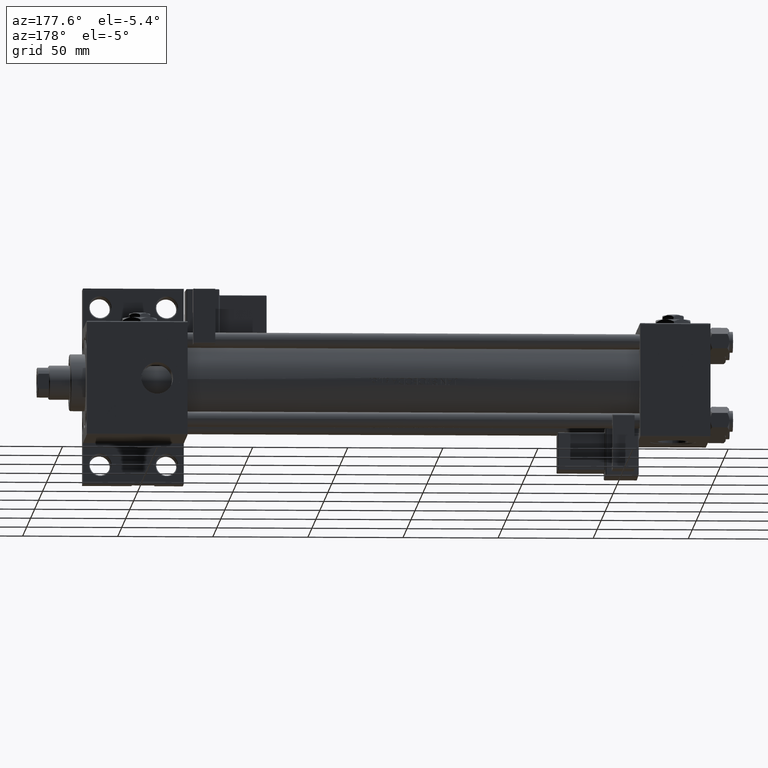
[diagram: clean part render]
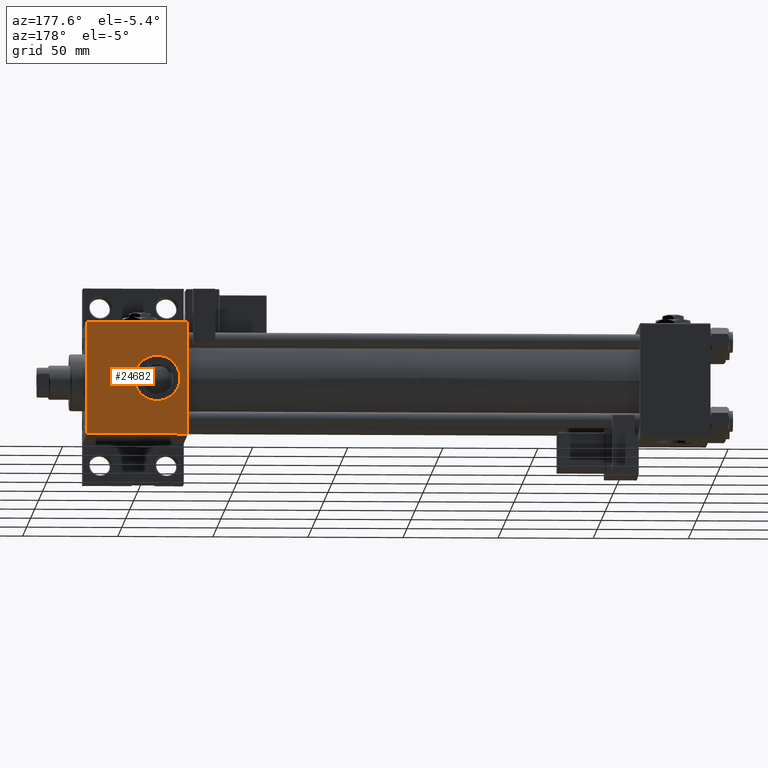
[diagram: same view with one face highlighted and labeled with its STEP entity id]
A machine part, auxiliary view. The second image highlights one B-rep face of the part: STEP entity #24682.
In plain terms, the highlighted planar face has unit normal (0, -1, -0).
Its self-contained STEP definition (entity closure, byte-faithful):
#1429 = CARTESIAN_POINT ( 'NONE',  ( 327.9999999999999432, 30.00000000000000000, 30.00000000000000000 ) ) ;
#1869 = DIRECTION ( 'NONE',  ( 0.000000000000000000, 0.000000000000000000, 1.000000000000000000 ) ) ;
#4906 = CARTESIAN_POINT ( 'NONE',  ( 327.9999999999999432, 30.00000000000000000, 30.00000000000000000 ) ) ;
#5104 = CARTESIAN_POINT ( 'NONE',  ( 303.0000000000000000, -3.469446951953613794E-15, 29.99999999999999645 ) ) ;
#6098 = AXIS2_PLACEMENT_3D ( 'NONE', #30831, #1869, #7497 ) ;
#6670 = EDGE_LOOP ( 'NONE', ( #32267, #25491 ) ) ;
#7497 = DIRECTION ( 'NONE',  ( 1.000000000000000000, 0.000000000000000000, 0.000000000000000000 ) ) ;
#7993 = VECTOR ( 'NONE', #13628, 1000.000000000000000 ) ;
#8009 = CARTESIAN_POINT ( 'NONE',  ( 278.9999999999999432, -1.999870792976783339E-15, 29.99999999999999645 ) ) ;
#9585 = LINE ( 'NONE', #29439, #7993 ) ;
#10251 = DIRECTION ( 'NONE',  ( 1.000000000000000000, 0.000000000000000000, 0.000000000000000000 ) ) ;
#11453 = EDGE_CURVE ( 'NONE', #31600, #40371, #42894, .T. ) ;
#12420 = ORIENTED_EDGE ( 'NONE', *, *, #36757, .T. ) ;
#13152 = DIRECTION ( 'NONE',  ( 1.000000000000000000, 0.000000000000000000, 0.000000000000000000 ) ) ;
#13197 = AXIS2_PLACEMENT_3D ( 'NONE', #1429, #39205, #14043 ) ;
#13228 = LINE ( 'NONE', #4906, #36967 ) ;
#13628 = DIRECTION ( 'NONE',  ( 0.000000000000000000, -1.000000000000000000, -1.156482317317871478E-16 ) ) ;
#14043 = DIRECTION ( 'NONE',  ( 0.000000000000000000, 1.000000000000000000, 1.156482317317871478E-16 ) ) ;
#14269 = EDGE_CURVE ( 'NONE', #40371, #22720, #9585, .T. ) ;
#14532 = ORIENTED_EDGE ( 'NONE', *, *, #11453, .T. ) ;
#18042 = LINE ( 'NONE', #22072, #38675 ) ;
#20509 = DIRECTION ( 'NONE',  ( 0.000000000000000000, -1.000000000000000000, -1.156482317317871478E-16 ) ) ;
#22072 = CARTESIAN_POINT ( 'NONE',  ( 327.9999999999999432, -29.50000000000000000, 29.99999999999999289 ) ) ;
#22313 = DIRECTION ( 'NONE',  ( -1.000000000000000000, 0.000000000000000000, 0.000000000000000000 ) ) ;
#22720 = VERTEX_POINT ( 'NONE', #52293 ) ;
#24682 = ADVANCED_FACE ( 'NONE', ( #26101, #30381 ), #31176, .F. ) ;
#25491 = ORIENTED_EDGE ( 'NONE', *, *, #38119, .F. ) ;
#26101 = FACE_BOUND ( 'NONE', #6670, .T. ) ;
#26852 = CARTESIAN_POINT ( 'NONE',  ( 274.9999999999999432, 29.50000000000002487, 30.00000000000000000 ) ) ;
#28770 = ORIENTED_EDGE ( 'NONE', *, *, #36639, .F. ) ;
#29230 = CIRCLE ( 'NONE', #6098, 12.00000000000001066 ) ;
#29439 = CARTESIAN_POINT ( 'NONE',  ( 274.9999999999999432, 30.00000000000000000, 30.00000000000000000 ) ) ;
#30339 = CARTESIAN_POINT ( 'NONE',  ( 274.9999999999999432, 29.50000000000002487, 30.00000000000000000 ) ) ;
#30381 = FACE_OUTER_BOUND ( 'NONE', #46229, .T. ) ;
#30469 = CIRCLE ( 'NONE', #49273, 12.00000000000001066 ) ;
#30831 = CARTESIAN_POINT ( 'NONE',  ( 291.0000000000000000, -3.469446951953613794E-15, 29.99999999999999645 ) ) ;
#30987 = VECTOR ( 'NONE', #22313, 1000.000000000000000 ) ;
#31176 = PLANE ( 'NONE',  #13197 ) ;
#31600 = VERTEX_POINT ( 'NONE', #42649 ) ;
#31654 = ORIENTED_EDGE ( 'NONE', *, *, #14269, .T. ) ;
#31834 = EDGE_CURVE ( 'NONE', #37039, #33138, #30469, .T. ) ;
#32267 = ORIENTED_EDGE ( 'NONE', *, *, #31834, .F. ) ;
#33138 = VERTEX_POINT ( 'NONE', #8009 ) ;
#36639 = EDGE_CURVE ( 'NONE', #31600, #41920, #13228, .T. ) ;
#36757 = EDGE_CURVE ( 'NONE', #22720, #41920, #18042, .T. ) ;
#36967 = VECTOR ( 'NONE', #20509, 1000.000000000000000 ) ;
#37039 = VERTEX_POINT ( 'NONE', #5104 ) ;
#38119 = EDGE_CURVE ( 'NONE', #33138, #37039, #29230, .T. ) ;
#38675 = VECTOR ( 'NONE', #10251, 1000.000000000000000 ) ;
#39205 = DIRECTION ( 'NONE',  ( 0.000000000000000000, 1.156482317317871478E-16, -1.000000000000000000 ) ) ;
#40371 = VERTEX_POINT ( 'NONE', #26852 ) ;
#41531 = CARTESIAN_POINT ( 'NONE',  ( 291.0000000000000000, -3.469446951953613794E-15, 29.99999999999999645 ) ) ;
#41920 = VERTEX_POINT ( 'NONE', #43460 ) ;
#42649 = CARTESIAN_POINT ( 'NONE',  ( 327.9999999999999432, 29.50000000000002487, 30.00000000000000000 ) ) ;
#42894 = LINE ( 'NONE', #30339, #30987 ) ;
#43460 = CARTESIAN_POINT ( 'NONE',  ( 327.9999999999999432, -29.50000000000000000, 29.99999999999999289 ) ) ;
#46229 = EDGE_LOOP ( 'NONE', ( #28770, #14532, #31654, #12420 ) ) ;
#49273 = AXIS2_PLACEMENT_3D ( 'NONE', #41531, #49829, #13152 ) ;
#49829 = DIRECTION ( 'NONE',  ( 0.000000000000000000, 0.000000000000000000, 1.000000000000000000 ) ) ;
#52293 = CARTESIAN_POINT ( 'NONE',  ( 274.9999999999999432, -29.50000000000000000, 29.99999999999999289 ) ) ;